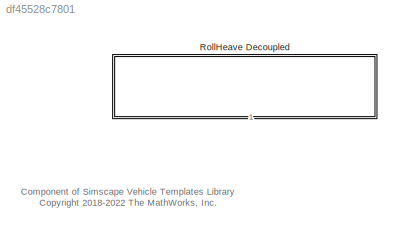
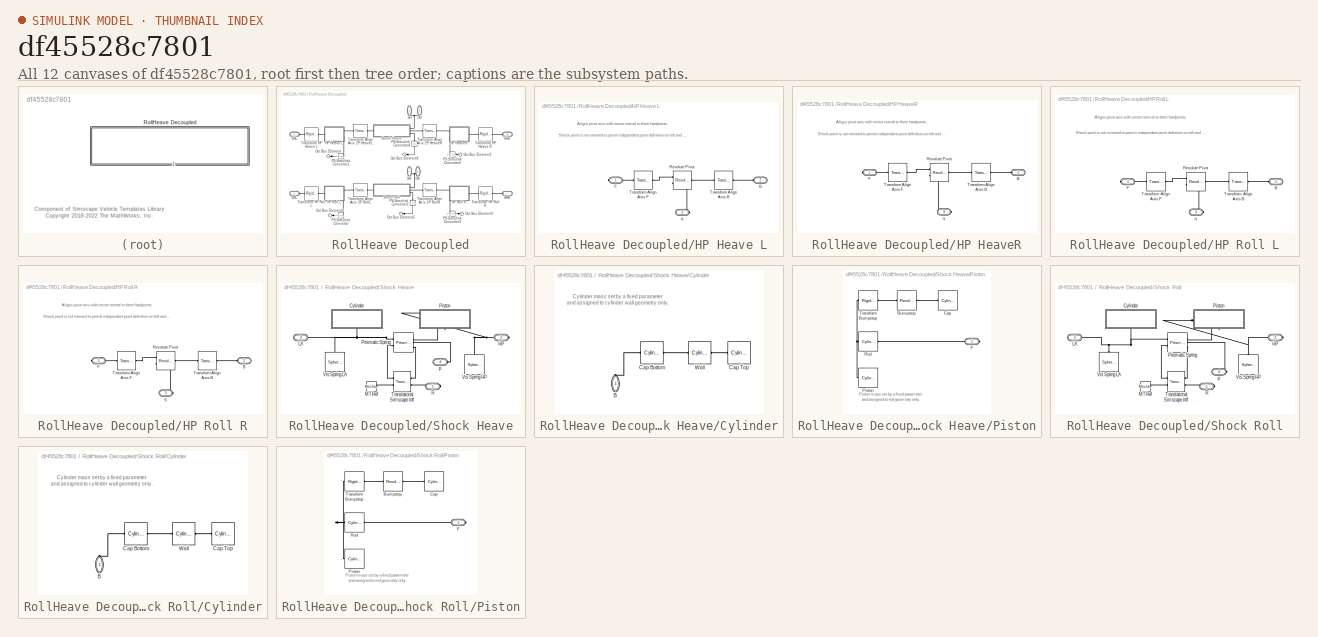
[diagram: thumbnail index - all 12 canvases of the model, root first then tree order]
MODEL slx_df45528c7801
KIND library
CONFIG AbsTol = auto
CONFIG EnableMultiTasking = off
CONFIG FixedStep = auto
CONFIG MaxStep = auto
CONFIG MinStep = auto
CONFIG RelTol = 1e-3
CONFIG SampleTimeConstraint = Unconstrained
CONFIG SolverName = VariableStepAuto
CONFIG StartTime = 0.0
CONFIG StopTime = 10.0
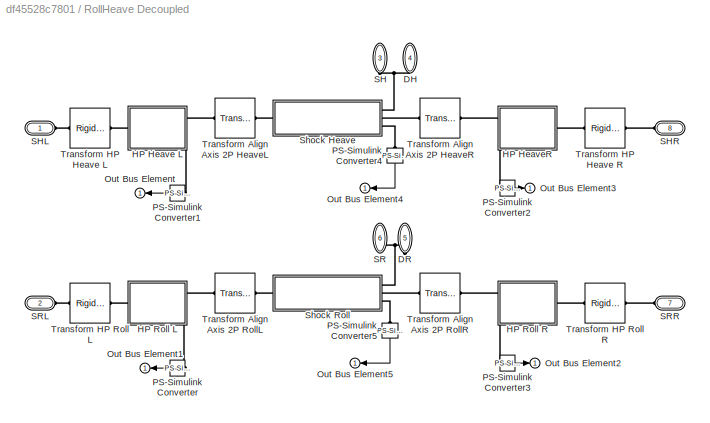
BLOCK [SubSystem] RollHeave Decoupled
  NameLocation = left
  Ports = [0, 1, 0, 0, 0, 8]
  RequestExecContextInheritance = off
  VariantControl = Variant1
BLOCK [PMIOPort] RollHeave Decoupled/DH
  NameLocation = right
  Port = 4
  Side = Left
BLOCK [PMIOPort] RollHeave Decoupled/DR
  NameLocation = right
  Port = 5
  Side = Left
BLOCK [SubSystem] RollHeave Decoupled/HP Heave L
  Ports = [0, 0, 0, 0, 0, 1, 2]
  RequestExecContextInheritance = off
BLOCK [PMIOPort] RollHeave Decoupled/HP Heave L/B
  Port = 2
  Side = Left
BLOCK [PMIOPort] RollHeave Decoupled/HP Heave L/F
  Side = Right
BLOCK [Reference] RollHeave Decoupled/HP Heave L/Revolute Pivot  REF=sm_lib/Joints/Revolute Joint
  Ports = [0, 0, 0, 0, 0, 1, 2]
  SourceBlock = sm_lib/Joints/Revolute Joint
  SourceProductBaseCode = MS
  SourceType = Revolute Joint
BLOCK [Reference] RollHeave Decoupled/HP Heave L/Transform Align Axis B  REF=sm_car_lib/Utilities/Transform  (lib defined in slx_05426f0848b6, slx_5dc2867fb1c9)
Align Axis Three Points
  Ports = [0, 0, 0, 0, 0, 1, 1]
  SourceBlock = sm_car_lib/Utilities/Transform\nAlign Axis Three Points
  SourceType = Transform Align Axis Three Points
BLOCK [Reference] RollHeave Decoupled/HP Heave L/Transform Align Axis F  REF=sm_car_lib/Utilities/Transform  (lib defined in slx_05426f0848b6, slx_5dc2867fb1c9)
Align Axis Three Points
  Ports = [0, 0, 0, 0, 0, 1, 1]
  SourceBlock = sm_car_lib/Utilities/Transform\nAlign Axis Three Points
  SourceType = Transform Align Axis Three Points
BLOCK [PMIOPort] RollHeave Decoupled/HP Heave L/q
  Port = 3
  Side = Right
BLOCK [SubSystem] RollHeave Decoupled/HP HeaveR
  Ports = [0, 0, 0, 0, 0, 1, 2]
  RequestExecContextInheritance = off
BLOCK [PMIOPort] RollHeave Decoupled/HP HeaveR/B
  Port = 2
  Side = Left
BLOCK [PMIOPort] RollHeave Decoupled/HP HeaveR/F
  Side = Right
BLOCK [Reference] RollHeave Decoupled/HP HeaveR/Revolute Pivot  REF=sm_lib/Joints/Revolute Joint
  Ports = [0, 0, 0, 0, 0, 1, 2]
  SourceBlock = sm_lib/Joints/Revolute Joint
  SourceProductBaseCode = MS
  SourceType = Revolute Joint
BLOCK [Reference] RollHeave Decoupled/HP HeaveR/Transform Align Axis B  REF=sm_car_lib/Utilities/Transform  (lib defined in slx_05426f0848b6, slx_5dc2867fb1c9)
Align Axis Three Points
  Ports = [0, 0, 0, 0, 0, 1, 1]
  SourceBlock = sm_car_lib/Utilities/Transform\nAlign Axis Three Points
  SourceType = Transform Align Axis Three Points
BLOCK [Reference] RollHeave Decoupled/HP HeaveR/Transform Align Axis F  REF=sm_car_lib/Utilities/Transform  (lib defined in slx_05426f0848b6, slx_5dc2867fb1c9)
Align Axis Three Points
  Ports = [0, 0, 0, 0, 0, 1, 1]
  SourceBlock = sm_car_lib/Utilities/Transform\nAlign Axis Three Points
  SourceType = Transform Align Axis Three Points
BLOCK [PMIOPort] RollHeave Decoupled/HP HeaveR/q
  Port = 3
  Side = Right
BLOCK [SubSystem] RollHeave Decoupled/HP Roll L
  Ports = [0, 0, 0, 0, 0, 1, 2]
  RequestExecContextInheritance = off
BLOCK [PMIOPort] RollHeave Decoupled/HP Roll L/B
  Port = 2
  Side = Left
BLOCK [PMIOPort] RollHeave Decoupled/HP Roll L/F
  Side = Right
BLOCK [Reference] RollHeave Decoupled/HP Roll L/Revolute Pivot  REF=sm_lib/Joints/Revolute Joint
  Ports = [0, 0, 0, 0, 0, 1, 2]
  SourceBlock = sm_lib/Joints/Revolute Joint
  SourceProductBaseCode = MS
  SourceType = Revolute Joint
BLOCK [Reference] RollHeave Decoupled/HP Roll L/Transform Align Axis B  REF=sm_car_lib/Utilities/Transform  (lib defined in slx_05426f0848b6, slx_5dc2867fb1c9)
Align Axis Three Points
  Ports = [0, 0, 0, 0, 0, 1, 1]
  SourceBlock = sm_car_lib/Utilities/Transform\nAlign Axis Three Points
  SourceType = Transform Align Axis Three Points
BLOCK [Reference] RollHeave Decoupled/HP Roll L/Transform Align Axis F  REF=sm_car_lib/Utilities/Transform  (lib defined in slx_05426f0848b6, slx_5dc2867fb1c9)
Align Axis Three Points
  Ports = [0, 0, 0, 0, 0, 1, 1]
  SourceBlock = sm_car_lib/Utilities/Transform\nAlign Axis Three Points
  SourceType = Transform Align Axis Three Points
BLOCK [PMIOPort] RollHeave Decoupled/HP Roll L/q
  Port = 3
  Side = Right
BLOCK [SubSystem] RollHeave Decoupled/HP Roll R
  Ports = [0, 0, 0, 0, 0, 1, 2]
  RequestExecContextInheritance = off
BLOCK [PMIOPort] RollHeave Decoupled/HP Roll R/B
  Port = 2
  Side = Left
BLOCK [PMIOPort] RollHeave Decoupled/HP Roll R/F
  Side = Right
BLOCK [Reference] RollHeave Decoupled/HP Roll R/Revolute Pivot  REF=sm_lib/Joints/Revolute Joint
  Ports = [0, 0, 0, 0, 0, 1, 2]
  SourceBlock = sm_lib/Joints/Revolute Joint
  SourceProductBaseCode = MS
  SourceType = Revolute Joint
BLOCK [Reference] RollHeave Decoupled/HP Roll R/Transform Align Axis B  REF=sm_car_lib/Utilities/Transform  (lib defined in slx_05426f0848b6, slx_5dc2867fb1c9)
Align Axis Three Points
  Ports = [0, 0, 0, 0, 0, 1, 1]
  SourceBlock = sm_car_lib/Utilities/Transform\nAlign Axis Three Points
  SourceType = Transform Align Axis Three Points
BLOCK [Reference] RollHeave Decoupled/HP Roll R/Transform Align Axis F  REF=sm_car_lib/Utilities/Transform  (lib defined in slx_05426f0848b6, slx_5dc2867fb1c9)
Align Axis Three Points
  Ports = [0, 0, 0, 0, 0, 1, 1]
  SourceBlock = sm_car_lib/Utilities/Transform\nAlign Axis Three Points
  SourceType = Transform Align Axis Three Points
BLOCK [PMIOPort] RollHeave Decoupled/HP Roll R/q
  Port = 3
  Side = Right
BLOCK [Outport] RollHeave Decoupled/Out Bus Element
  VectorParamsAs1DForOutWhenUnconnected = off
BLOCK [Outport] RollHeave Decoupled/Out Bus Element1
  VectorParamsAs1DForOutWhenUnconnected = off
BLOCK [Outport] RollHeave Decoupled/Out Bus Element2
  VectorParamsAs1DForOutWhenUnconnected = off
BLOCK [Outport] RollHeave Decoupled/Out Bus Element3
  VectorParamsAs1DForOutWhenUnconnected = off
BLOCK [Outport] RollHeave Decoupled/Out Bus Element4
  VectorParamsAs1DForOutWhenUnconnected = off
BLOCK [Outport] RollHeave Decoupled/Out Bus Element5
  VectorParamsAs1DForOutWhenUnconnected = off
BLOCK [Reference] RollHeave Decoupled/PS-Simulink Converter  REF=nesl_utility/PS-Simulink
Converter
  Ports = [0, 1, 0, 0, 0, 1]
  SourceBlock = nesl_utility/PS-Simulink\nConverter
  SourceProductBaseCode = SS,PW,VE
  SourceType = PS-Simulink\nConverter
BLOCK [Reference] RollHeave Decoupled/PS-Simulink Converter1  REF=nesl_utility/PS-Simulink
Converter
  Ports = [0, 1, 0, 0, 0, 1]
  SourceBlock = nesl_utility/PS-Simulink\nConverter
  SourceProductBaseCode = SS,PW,VE
  SourceType = PS-Simulink\nConverter
BLOCK [Reference] RollHeave Decoupled/PS-Simulink Converter2  REF=nesl_utility/PS-Simulink
Converter
  Ports = [0, 1, 0, 0, 0, 1]
  SourceBlock = nesl_utility/PS-Simulink\nConverter
  SourceProductBaseCode = SS,PW,VE
  SourceType = PS-Simulink\nConverter
BLOCK [Reference] RollHeave Decoupled/PS-Simulink Converter3  REF=nesl_utility/PS-Simulink
Converter
  Ports = [0, 1, 0, 0, 0, 1]
  SourceBlock = nesl_utility/PS-Simulink\nConverter
  SourceProductBaseCode = SS,PW,VE
  SourceType = PS-Simulink\nConverter
BLOCK [Reference] RollHeave Decoupled/PS-Simulink Converter4  REF=nesl_utility/PS-Simulink
Converter
  NameLocation = right
  Ports = [0, 1, 0, 0, 0, 1]
  SourceBlock = nesl_utility/PS-Simulink\nConverter
  SourceProductBaseCode = SS,PW,VE
  SourceType = PS-Simulink\nConverter
BLOCK [Reference] RollHeave Decoupled/PS-Simulink Converter5  REF=nesl_utility/PS-Simulink
Converter
  NameLocation = right
  Ports = [0, 1, 0, 0, 0, 1]
  SourceBlock = nesl_utility/PS-Simulink\nConverter
  SourceProductBaseCode = SS,PW,VE
  SourceType = PS-Simulink\nConverter
BLOCK [PMIOPort] RollHeave Decoupled/SH
  NameLocation = left
  Port = 3
  Side = Left
BLOCK [PMIOPort] RollHeave Decoupled/SHL
  Side = Left
BLOCK [PMIOPort] RollHeave Decoupled/SHR
  Port = 8
  Side = Left
BLOCK [PMIOPort] RollHeave Decoupled/SR
  NameLocation = left
  Port = 6
  Side = Left
BLOCK [PMIOPort] RollHeave Decoupled/SRL
  Port = 2
  Side = Left
BLOCK [PMIOPort] RollHeave Decoupled/SRR
  Port = 7
  Side = Left
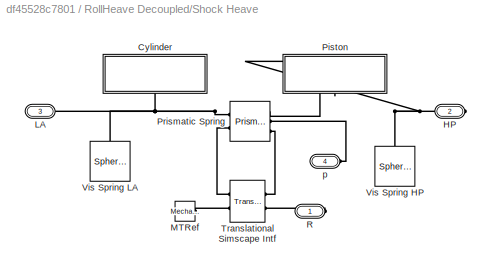
BLOCK [SubSystem] RollHeave Decoupled/Shock Heave
  Ports = [0, 0, 0, 0, 0, 1, 3]
  RequestExecContextInheritance = off
BLOCK [SubSystem] RollHeave Decoupled/Shock Heave/Cylinder
  NameLocation = left
  Ports = [0, 0, 0, 0, 0, 1]
  RequestExecContextInheritance = off
BLOCK [PMIOPort] RollHeave Decoupled/Shock Heave/Cylinder/B
  NameLocation = right
  Side = Left
BLOCK [Reference] RollHeave Decoupled/Shock Heave/Cylinder/Cap Bottom  REF=sm_lib/Body Elements/Cylindrical Solid
  Ports = [0, 0, 0, 0, 0, 1, 1]
  SourceBlock = sm_lib/Body Elements/Cylindrical Solid
  SourceProductBaseCode = MS
  SourceType = Cylindrical Solid
BLOCK [Reference] RollHeave Decoupled/Shock Heave/Cylinder/Cap Top  REF=sm_lib/Body Elements/Cylindrical Solid
  Ports = [0, 0, 0, 0, 0, 1]
  SourceBlock = sm_lib/Body Elements/Cylindrical Solid
  SourceProductBaseCode = MS
  SourceType = Cylindrical Solid
BLOCK [Reference] RollHeave Decoupled/Shock Heave/Cylinder/Wall  REF=sm_lib/Body Elements/Cylindrical Solid
  Ports = [0, 0, 0, 0, 0, 1, 1]
  SourceBlock = sm_lib/Body Elements/Cylindrical Solid
  SourceProductBaseCode = MS
  SourceType = Cylindrical Solid
BLOCK [PMIOPort] RollHeave Decoupled/Shock Heave/HP
  Port = 2
  Side = Right
BLOCK [PMIOPort] RollHeave Decoupled/Shock Heave/LA
  Port = 3
  Side = Left
BLOCK [Reference] RollHeave Decoupled/Shock Heave/MTRef  REF=fl_lib/Mechanical/Translational
Elements/Mechanical
Translational
Reference
  Ports = [0, 0, 0, 0, 0, 1]
  SourceBlock = fl_lib/Mechanical/Translational\nElements/Mechanical\nTranslational\nReference
  SourceProductBaseCode = PW,SS,VE
  SourceType = Mechanical\nTranslational\nReference
BLOCK [SubSystem] RollHeave Decoupled/Shock Heave/Piston
  NameLocation = right
  Ports = [0, 0, 0, 0, 0, 0, 1]
  RequestExecContextInheritance = off
BLOCK [Reference] RollHeave Decoupled/Shock Heave/Piston/Bumpstop  REF=sm_lib/Body Elements/Revolved Solid
  Ports = [0, 0, 0, 0, 0, 1, 1]
  SourceBlock = sm_lib/Body Elements/Revolved Solid
  SourceProductBaseCode = MS
  SourceType = Revolved Solid
BLOCK [Reference] RollHeave Decoupled/Shock Heave/Piston/Cap  REF=sm_lib/Body Elements/Cylindrical Solid
  Ports = [0, 0, 0, 0, 0, 1]
  SourceBlock = sm_lib/Body Elements/Cylindrical Solid
  SourceProductBaseCode = MS
  SourceType = Cylindrical Solid
BLOCK [PMIOPort] RollHeave Decoupled/Shock Heave/Piston/F
  Side = Right
BLOCK [Reference] RollHeave Decoupled/Shock Heave/Piston/Piston  REF=sm_lib/Body Elements/Cylindrical Solid
  Ports = [0, 0, 0, 0, 0, 1]
  SourceBlock = sm_lib/Body Elements/Cylindrical Solid
  SourceProductBaseCode = MS
  SourceType = Cylindrical Solid
BLOCK [Reference] RollHeave Decoupled/Shock Heave/Piston/Rod  REF=sm_lib/Body Elements/Cylindrical Solid
  Ports = [0, 0, 0, 0, 0, 1, 1]
  SourceBlock = sm_lib/Body Elements/Cylindrical Solid
  SourceProductBaseCode = MS
  SourceType = Cylindrical Solid
BLOCK [Reference] RollHeave Decoupled/Shock Heave/Piston/Transform Bumpstop  REF=sm_lib/Frames and
Transforms/Rigid
Transform
  Ports = [0, 0, 0, 0, 0, 1, 1]
  SourceBlock = sm_lib/Frames and\nTransforms/Rigid\nTransform
  SourceProductBaseCode = MS
  SourceType = Rigid\nTransform
BLOCK [Reference] RollHeave Decoupled/Shock Heave/Prismatic Spring  REF=sm_lib/Joints/Prismatic
Joint
  Ports = [0, 0, 0, 0, 0, 2, 3]
  SourceBlock = sm_lib/Joints/Prismatic\nJoint
  SourceProductBaseCode = MS
  SourceType = Prismatic\nJoint
BLOCK [PMIOPort] RollHeave Decoupled/Shock Heave/R
  Side = Right
BLOCK [Reference] RollHeave Decoupled/Shock Heave/Translational Simscape Intf  REF=sm_car_lib/Utilities/Translational  (lib defined in slx_05426f0848b6, slx_5dc2867fb1c9)
Simscape Intf
  Ports = [0, 0, 0, 0, 0, 2, 2]
  SourceBlock = sm_car_lib/Utilities/Translational\nSimscape Intf
  SourceType = SubSystem
BLOCK [Reference] RollHeave Decoupled/Shock Heave/Vis Spring HP  REF=sm_lib/Body Elements/Spherical Solid
  NameLocation = right
  Ports = [0, 0, 0, 0, 0, 0, 1]
  SourceBlock = sm_lib/Body Elements/Spherical Solid
  SourceProductBaseCode = MS
  SourceType = Spherical Solid
BLOCK [Reference] RollHeave Decoupled/Shock Heave/Vis Spring LA  REF=sm_lib/Body Elements/Spherical Solid
  NameLocation = left
  Ports = [0, 0, 0, 0, 0, 0, 1]
  SourceBlock = sm_lib/Body Elements/Spherical Solid
  SourceProductBaseCode = MS
  SourceType = Spherical Solid
BLOCK [PMIOPort] RollHeave Decoupled/Shock Heave/p
  Port = 4
  Side = Right
BLOCK [SubSystem] RollHeave Decoupled/Shock Roll
  Ports = [0, 0, 0, 0, 0, 1, 3]
  RequestExecContextInheritance = off
BLOCK [SubSystem] RollHeave Decoupled/Shock Roll/Cylinder
  NameLocation = left
  Ports = [0, 0, 0, 0, 0, 1]
  RequestExecContextInheritance = off
BLOCK [PMIOPort] RollHeave Decoupled/Shock Roll/Cylinder/B
  NameLocation = right
  Side = Left
BLOCK [Reference] RollHeave Decoupled/Shock Roll/Cylinder/Cap Bottom  REF=sm_lib/Body Elements/Cylindrical Solid
  Ports = [0, 0, 0, 0, 0, 1, 1]
  SourceBlock = sm_lib/Body Elements/Cylindrical Solid
  SourceProductBaseCode = MS
  SourceType = Cylindrical Solid
BLOCK [Reference] RollHeave Decoupled/Shock Roll/Cylinder/Cap Top  REF=sm_lib/Body Elements/Cylindrical Solid
  Ports = [0, 0, 0, 0, 0, 1]
  SourceBlock = sm_lib/Body Elements/Cylindrical Solid
  SourceProductBaseCode = MS
  SourceType = Cylindrical Solid
BLOCK [Reference] RollHeave Decoupled/Shock Roll/Cylinder/Wall  REF=sm_lib/Body Elements/Cylindrical Solid
  Ports = [0, 0, 0, 0, 0, 1, 1]
  SourceBlock = sm_lib/Body Elements/Cylindrical Solid
  SourceProductBaseCode = MS
  SourceType = Cylindrical Solid
BLOCK [PMIOPort] RollHeave Decoupled/Shock Roll/HP
  Port = 2
  Side = Right
BLOCK [PMIOPort] RollHeave Decoupled/Shock Roll/LA
  Port = 3
  Side = Left
BLOCK [Reference] RollHeave Decoupled/Shock Roll/MTRef  REF=fl_lib/Mechanical/Translational
Elements/Mechanical
Translational
Reference
  Ports = [0, 0, 0, 0, 0, 1]
  SourceBlock = fl_lib/Mechanical/Translational\nElements/Mechanical\nTranslational\nReference
  SourceProductBaseCode = PW,SS,VE
  SourceType = Mechanical\nTranslational\nReference
BLOCK [SubSystem] RollHeave Decoupled/Shock Roll/Piston
  NameLocation = right
  Ports = [0, 0, 0, 0, 0, 0, 1]
  RequestExecContextInheritance = off
BLOCK [Reference] RollHeave Decoupled/Shock Roll/Piston/Bumpstop  REF=sm_lib/Body Elements/Revolved Solid
  Ports = [0, 0, 0, 0, 0, 1, 1]
  SourceBlock = sm_lib/Body Elements/Revolved Solid
  SourceProductBaseCode = MS
  SourceType = Revolved Solid
BLOCK [Reference] RollHeave Decoupled/Shock Roll/Piston/Cap  REF=sm_lib/Body Elements/Cylindrical Solid
  Ports = [0, 0, 0, 0, 0, 1]
  SourceBlock = sm_lib/Body Elements/Cylindrical Solid
  SourceProductBaseCode = MS
  SourceType = Cylindrical Solid
BLOCK [PMIOPort] RollHeave Decoupled/Shock Roll/Piston/F
  Side = Right
BLOCK [Reference] RollHeave Decoupled/Shock Roll/Piston/Piston  REF=sm_lib/Body Elements/Cylindrical Solid
  Ports = [0, 0, 0, 0, 0, 1]
  SourceBlock = sm_lib/Body Elements/Cylindrical Solid
  SourceProductBaseCode = MS
  SourceType = Cylindrical Solid
BLOCK [Reference] RollHeave Decoupled/Shock Roll/Piston/Rod  REF=sm_lib/Body Elements/Cylindrical Solid
  Ports = [0, 0, 0, 0, 0, 1, 1]
  SourceBlock = sm_lib/Body Elements/Cylindrical Solid
  SourceProductBaseCode = MS
  SourceType = Cylindrical Solid
BLOCK [Reference] RollHeave Decoupled/Shock Roll/Piston/Transform Bumpstop  REF=sm_lib/Frames and
Transforms/Rigid
Transform
  Ports = [0, 0, 0, 0, 0, 1, 1]
  SourceBlock = sm_lib/Frames and\nTransforms/Rigid\nTransform
  SourceProductBaseCode = MS
  SourceType = Rigid\nTransform
BLOCK [Reference] RollHeave Decoupled/Shock Roll/Prismatic Spring  REF=sm_lib/Joints/Prismatic
Joint
  Ports = [0, 0, 0, 0, 0, 2, 3]
  SourceBlock = sm_lib/Joints/Prismatic\nJoint
  SourceProductBaseCode = MS
  SourceType = Prismatic\nJoint
BLOCK [PMIOPort] RollHeave Decoupled/Shock Roll/R
  Side = Right
BLOCK [Reference] RollHeave Decoupled/Shock Roll/Translational Simscape Intf  REF=sm_car_lib/Utilities/Translational  (lib defined in slx_05426f0848b6, slx_5dc2867fb1c9)
Simscape Intf
  Ports = [0, 0, 0, 0, 0, 2, 2]
  SourceBlock = sm_car_lib/Utilities/Translational\nSimscape Intf
  SourceType = SubSystem
BLOCK [Reference] RollHeave Decoupled/Shock Roll/Vis Spring HP  REF=sm_lib/Body Elements/Spherical Solid
  NameLocation = right
  Ports = [0, 0, 0, 0, 0, 0, 1]
  SourceBlock = sm_lib/Body Elements/Spherical Solid
  SourceProductBaseCode = MS
  SourceType = Spherical Solid
BLOCK [Reference] RollHeave Decoupled/Shock Roll/Vis Spring LA  REF=sm_lib/Body Elements/Spherical Solid
  NameLocation = left
  Ports = [0, 0, 0, 0, 0, 0, 1]
  SourceBlock = sm_lib/Body Elements/Spherical Solid
  SourceProductBaseCode = MS
  SourceType = Spherical Solid
BLOCK [PMIOPort] RollHeave Decoupled/Shock Roll/p
  Port = 4
  Side = Right
BLOCK [Reference] RollHeave Decoupled/Transform Align Axis 2P HeaveL  REF=sm_car_lib/Utilities/Transform  (lib defined in slx_05426f0848b6, slx_5dc2867fb1c9)
Align Axis Two Points
  Ports = [0, 0, 0, 0, 0, 1, 1]
  SourceBlock = sm_car_lib/Utilities/Transform\nAlign Axis Two Points
  SourceType = Transform Align Axis Two Points
BLOCK [Reference] RollHeave Decoupled/Transform Align Axis 2P HeaveR  REF=sm_car_lib/Utilities/Transform  (lib defined in slx_05426f0848b6, slx_5dc2867fb1c9)
Align Axis Two Points
  Ports = [0, 0, 0, 0, 0, 1, 1]
  SourceBlock = sm_car_lib/Utilities/Transform\nAlign Axis Two Points
  SourceType = Transform Align Axis Two Points
BLOCK [Reference] RollHeave Decoupled/Transform Align Axis 2P RollL  REF=sm_car_lib/Utilities/Transform  (lib defined in slx_05426f0848b6, slx_5dc2867fb1c9)
Align Axis Two Points
  Ports = [0, 0, 0, 0, 0, 1, 1]
  SourceBlock = sm_car_lib/Utilities/Transform\nAlign Axis Two Points
  SourceType = Transform Align Axis Two Points
BLOCK [Reference] RollHeave Decoupled/Transform Align Axis 2P RollR  REF=sm_car_lib/Utilities/Transform  (lib defined in slx_05426f0848b6, slx_5dc2867fb1c9)
Align Axis Two Points
  Ports = [0, 0, 0, 0, 0, 1, 1]
  SourceBlock = sm_car_lib/Utilities/Transform\nAlign Axis Two Points
  SourceType = Transform Align Axis Two Points
BLOCK [Reference] RollHeave Decoupled/Transform HP Heave L   REF=sm_lib/Frames and
Transforms/Rigid
Transform
  Ports = [0, 0, 0, 0, 0, 1, 1]
  SourceBlock = sm_lib/Frames and\nTransforms/Rigid\nTransform
  SourceProductBaseCode = MS
  SourceType = Rigid\nTransform
BLOCK [Reference] RollHeave Decoupled/Transform HP Heave R  REF=sm_lib/Frames and
Transforms/Rigid
Transform
  Ports = [0, 0, 0, 0, 0, 1, 1]
  SourceBlock = sm_lib/Frames and\nTransforms/Rigid\nTransform
  SourceProductBaseCode = MS
  SourceType = Rigid\nTransform
BLOCK [Reference] RollHeave Decoupled/Transform HP Roll L  REF=sm_lib/Frames and
Transforms/Rigid
Transform
  Ports = [0, 0, 0, 0, 0, 1, 1]
  SourceBlock = sm_lib/Frames and\nTransforms/Rigid\nTransform
  SourceProductBaseCode = MS
  SourceType = Rigid\nTransform
BLOCK [Reference] RollHeave Decoupled/Transform HP Roll R  REF=sm_lib/Frames and
Transforms/Rigid
Transform
  Ports = [0, 0, 0, 0, 0, 1, 1]
  SourceBlock = sm_lib/Frames and\nTransforms/Rigid\nTransform
  SourceProductBaseCode = MS
  SourceType = Rigid\nTransform
ANNOTATION (root): Component of Simscape Vehicle Templates Library <copyright redacted>
ANNOTATION RollHeave Decoupled/HP Heave L: Aligns pivot axis with vector normal to three hardpoints.
ANNOTATION RollHeave Decoupled/HP Heave L: Shock point is not mirrored to permit independent point definition on left and right sides.
ANNOTATION RollHeave Decoupled/HP HeaveR: Aligns pivot axis with vector normal to three hardpoints.
ANNOTATION RollHeave Decoupled/HP HeaveR: Shock point is not mirrored to permit independent point definition on left and right sides.
ANNOTATION RollHeave Decoupled/HP Roll L: Aligns pivot axis with vector normal to three hardpoints.
ANNOTATION RollHeave Decoupled/HP Roll L: Shock point is not mirrored to permit independent point definition on left and right sides.
ANNOTATION RollHeave Decoupled/HP Roll R: Aligns pivot axis with vector normal to three hardpoints.
ANNOTATION RollHeave Decoupled/HP Roll R: Shock point is not mirrored to permit independent point definition on left and right sides.
ANNOTATION RollHeave Decoupled/Shock Heave/Cylinder: Cylinder mass set by a fixed parameter and assigned to cylinder wall geometry only.
ANNOTATION RollHeave Decoupled/Shock Heave/Piston: Piston mass set by a fixed parameter and assigned to rod geometry only.
ANNOTATION RollHeave Decoupled/Shock Roll/Cylinder: Cylinder mass set by a fixed parameter and assigned to cylinder wall geometry only.
ANNOTATION RollHeave Decoupled/Shock Roll/Piston: Piston mass set by a fixed parameter and assigned to rod geometry only.
LINE RollHeave Decoupled/PS-Simulink Converter1:1 -> RollHeave Decoupled/Out Bus Element:1
LINE RollHeave Decoupled/PS-Simulink Converter2:1 -> RollHeave Decoupled/Out Bus Element3:1
LINE RollHeave Decoupled/PS-Simulink Converter3:1 -> RollHeave Decoupled/Out Bus Element2:1
LINE RollHeave Decoupled/PS-Simulink Converter4:1 -> RollHeave Decoupled/Out Bus Element4:1
LINE RollHeave Decoupled/PS-Simulink Converter5:1 -> RollHeave Decoupled/Out Bus Element5:1
LINE RollHeave Decoupled/PS-Simulink Converter:1 -> RollHeave Decoupled/Out Bus Element1:1
PNET net1: RollHeave Decoupled/DH:RConn1 -- RollHeave Decoupled/SH:RConn1 -- RollHeave Decoupled/Shock Heave:RConn1
PNET net2: RollHeave Decoupled/DR:RConn1 -- RollHeave Decoupled/SR:RConn1 -- RollHeave Decoupled/Shock Roll:RConn1
PLINE RollHeave Decoupled/HP Heave L:LConn1 -- RollHeave Decoupled/Transform HP Heave L :RConn1
PLINE RollHeave Decoupled/HP Heave L:RConn1 -- RollHeave Decoupled/Transform Align Axis 2P HeaveL:LConn1
PLINE RollHeave Decoupled/HP Heave L:RConn2 -- RollHeave Decoupled/PS-Simulink Converter1:LConn1
PLINE RollHeave Decoupled/HP HeaveR:LConn1 -- RollHeave Decoupled/Transform HP Heave R:RConn1
PLINE RollHeave Decoupled/HP HeaveR:RConn1 -- RollHeave Decoupled/Transform Align Axis 2P HeaveR:LConn1
PLINE RollHeave Decoupled/HP HeaveR:RConn2 -- RollHeave Decoupled/PS-Simulink Converter2:LConn1
PLINE RollHeave Decoupled/HP Roll L:LConn1 -- RollHeave Decoupled/Transform HP Roll L:RConn1
PLINE RollHeave Decoupled/HP Roll L:RConn1 -- RollHeave Decoupled/Transform Align Axis 2P RollL:LConn1
PLINE RollHeave Decoupled/HP Roll L:RConn2 -- RollHeave Decoupled/PS-Simulink Converter:LConn1
PLINE RollHeave Decoupled/HP Roll R:LConn1 -- RollHeave Decoupled/Transform HP Roll R:RConn1
PLINE RollHeave Decoupled/HP Roll R:RConn1 -- RollHeave Decoupled/Transform Align Axis 2P RollR:LConn1
PLINE RollHeave Decoupled/HP Roll R:RConn2 -- RollHeave Decoupled/PS-Simulink Converter3:LConn1
PLINE RollHeave Decoupled/PS-Simulink Converter4:LConn1 -- RollHeave Decoupled/Shock Heave:RConn3
PLINE RollHeave Decoupled/PS-Simulink Converter5:LConn1 -- RollHeave Decoupled/Shock Roll:RConn3
PLINE RollHeave Decoupled/SHL:RConn1 -- RollHeave Decoupled/Transform HP Heave L :LConn1
PLINE RollHeave Decoupled/SHR:RConn1 -- RollHeave Decoupled/Transform HP Heave R:LConn1
PLINE RollHeave Decoupled/SRL:RConn1 -- RollHeave Decoupled/Transform HP Roll L:LConn1
PLINE RollHeave Decoupled/SRR:RConn1 -- RollHeave Decoupled/Transform HP Roll R:LConn1
PLINE RollHeave Decoupled/Shock Heave/Cylinder/B:RConn1 -- RollHeave Decoupled/Shock Heave/Cylinder/Cap Bottom:RConn1
PLINE RollHeave Decoupled/Shock Heave/Cylinder/Cap Bottom:LConn1 -- RollHeave Decoupled/Shock Heave/Cylinder/Wall:RConn1
PLINE RollHeave Decoupled/Shock Heave/Cylinder/Cap Top:LConn1 -- RollHeave Decoupled/Shock Heave/Cylinder/Wall:LConn1
PNET net3: RollHeave Decoupled/Shock Heave/Cylinder:LConn1 -- RollHeave Decoupled/Shock Heave/LA:RConn1 -- RollHeave Decoupled/Shock Heave/Prismatic Spring:LConn1 -- RollHeave Decoupled/Shock Heave/Vis Spring LA:RConn1
PNET net4: RollHeave Decoupled/Shock Heave/HP:RConn1 -- RollHeave Decoupled/Shock Heave/Piston:RConn1 -- RollHeave Decoupled/Shock Heave/Prismatic Spring:RConn1 -- RollHeave Decoupled/Shock Heave/Vis Spring HP:RConn1
PLINE RollHeave Decoupled/Shock Heave/MTRef:LConn1 -- RollHeave Decoupled/Shock Heave/Translational Simscape Intf:LConn2
PLINE RollHeave Decoupled/Shock Heave/Piston/Bumpstop:LConn1 -- RollHeave Decoupled/Shock Heave/Piston/Cap:LConn1
PLINE RollHeave Decoupled/Shock Heave/Piston/Bumpstop:RConn1 -- RollHeave Decoupled/Shock Heave/Piston/Transform Bumpstop:RConn1
PLINE RollHeave Decoupled/Shock Heave/Piston/F:RConn1 -- RollHeave Decoupled/Shock Heave/Piston/Rod:LConn1
PNET net5: RollHeave Decoupled/Shock Heave/Piston/Piston:LConn1 -- RollHeave Decoupled/Shock Heave/Piston/Rod:RConn1 -- RollHeave Decoupled/Shock Heave/Piston/Transform Bumpstop:LConn1
PLINE RollHeave Decoupled/Shock Heave/Prismatic Spring:LConn2 -- RollHeave Decoupled/Shock Heave/Translational Simscape Intf:LConn1
PLINE RollHeave Decoupled/Shock Heave/Prismatic Spring:RConn2 -- RollHeave Decoupled/Shock Heave/p:RConn1
PLINE RollHeave Decoupled/Shock Heave/Prismatic Spring:RConn3 -- RollHeave Decoupled/Shock Heave/Translational Simscape Intf:RConn1
PLINE RollHeave Decoupled/Shock Heave/R:RConn1 -- RollHeave Decoupled/Shock Heave/Translational Simscape Intf:RConn2
PLINE RollHeave Decoupled/Shock Heave:LConn1 -- RollHeave Decoupled/Transform Align Axis 2P HeaveL:RConn1
PLINE RollHeave Decoupled/Shock Heave:RConn2 -- RollHeave Decoupled/Transform Align Axis 2P HeaveR:RConn1
PLINE RollHeave Decoupled/Shock Roll/Cylinder/B:RConn1 -- RollHeave Decoupled/Shock Roll/Cylinder/Cap Bottom:RConn1
PLINE RollHeave Decoupled/Shock Roll/Cylinder/Cap Bottom:LConn1 -- RollHeave Decoupled/Shock Roll/Cylinder/Wall:RConn1
PLINE RollHeave Decoupled/Shock Roll/Cylinder/Cap Top:LConn1 -- RollHeave Decoupled/Shock Roll/Cylinder/Wall:LConn1
PNET net6: RollHeave Decoupled/Shock Roll/Cylinder:LConn1 -- RollHeave Decoupled/Shock Roll/LA:RConn1 -- RollHeave Decoupled/Shock Roll/Prismatic Spring:LConn1 -- RollHeave Decoupled/Shock Roll/Vis Spring LA:RConn1
PNET net7: RollHeave Decoupled/Shock Roll/HP:RConn1 -- RollHeave Decoupled/Shock Roll/Piston:RConn1 -- RollHeave Decoupled/Shock Roll/Prismatic Spring:RConn1 -- RollHeave Decoupled/Shock Roll/Vis Spring HP:RConn1
PLINE RollHeave Decoupled/Shock Roll/MTRef:LConn1 -- RollHeave Decoupled/Shock Roll/Translational Simscape Intf:LConn2
PLINE RollHeave Decoupled/Shock Roll/Piston/Bumpstop:LConn1 -- RollHeave Decoupled/Shock Roll/Piston/Cap:LConn1
PLINE RollHeave Decoupled/Shock Roll/Piston/Bumpstop:RConn1 -- RollHeave Decoupled/Shock Roll/Piston/Transform Bumpstop:RConn1
PLINE RollHeave Decoupled/Shock Roll/Piston/F:RConn1 -- RollHeave Decoupled/Shock Roll/Piston/Rod:LConn1
PNET net8: RollHeave Decoupled/Shock Roll/Piston/Piston:LConn1 -- RollHeave Decoupled/Shock Roll/Piston/Rod:RConn1 -- RollHeave Decoupled/Shock Roll/Piston/Transform Bumpstop:LConn1
PLINE RollHeave Decoupled/Shock Roll/Prismatic Spring:LConn2 -- RollHeave Decoupled/Shock Roll/Translational Simscape Intf:LConn1
PLINE RollHeave Decoupled/Shock Roll/Prismatic Spring:RConn2 -- RollHeave Decoupled/Shock Roll/p:RConn1
PLINE RollHeave Decoupled/Shock Roll/Prismatic Spring:RConn3 -- RollHeave Decoupled/Shock Roll/Translational Simscape Intf:RConn1
PLINE RollHeave Decoupled/Shock Roll/R:RConn1 -- RollHeave Decoupled/Shock Roll/Translational Simscape Intf:RConn2
PLINE RollHeave Decoupled/Shock Roll:LConn1 -- RollHeave Decoupled/Transform Align Axis 2P RollL:RConn1
PLINE RollHeave Decoupled/Shock Roll:RConn2 -- RollHeave Decoupled/Transform Align Axis 2P RollR:RConn1
note: PNET lines group multi-terminal physical nets as a canonical sorted terminal list (undirected conserving connections); 2-terminal nets keep the pairwise PLINE form
